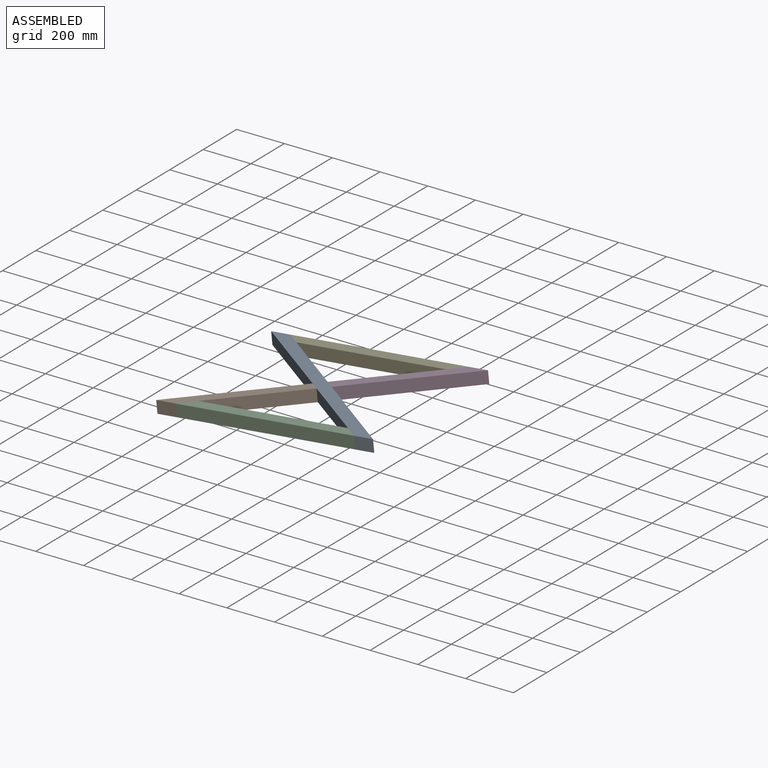
[diagram: assembled view]
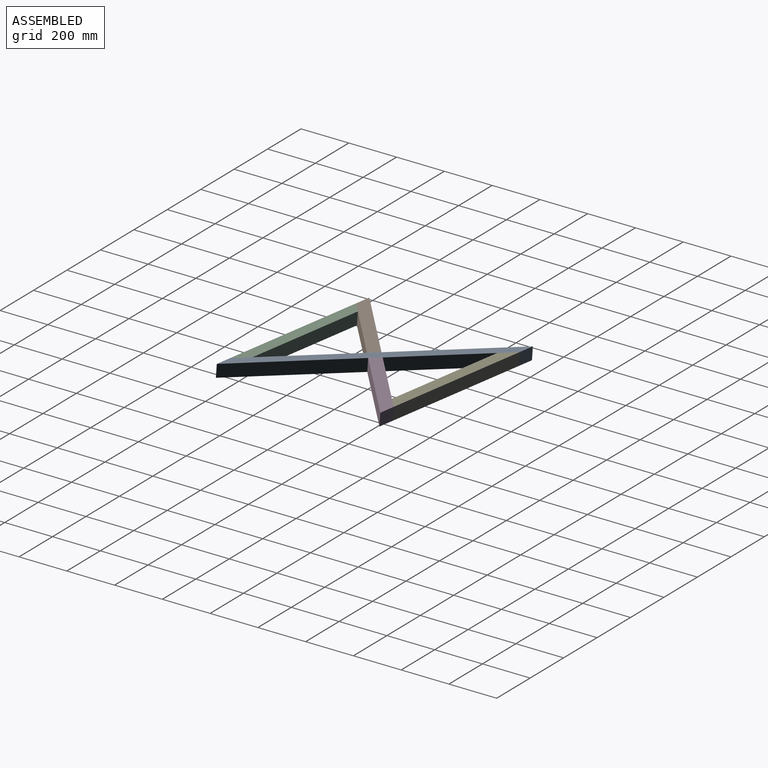
[diagram: assembled view, second angle]
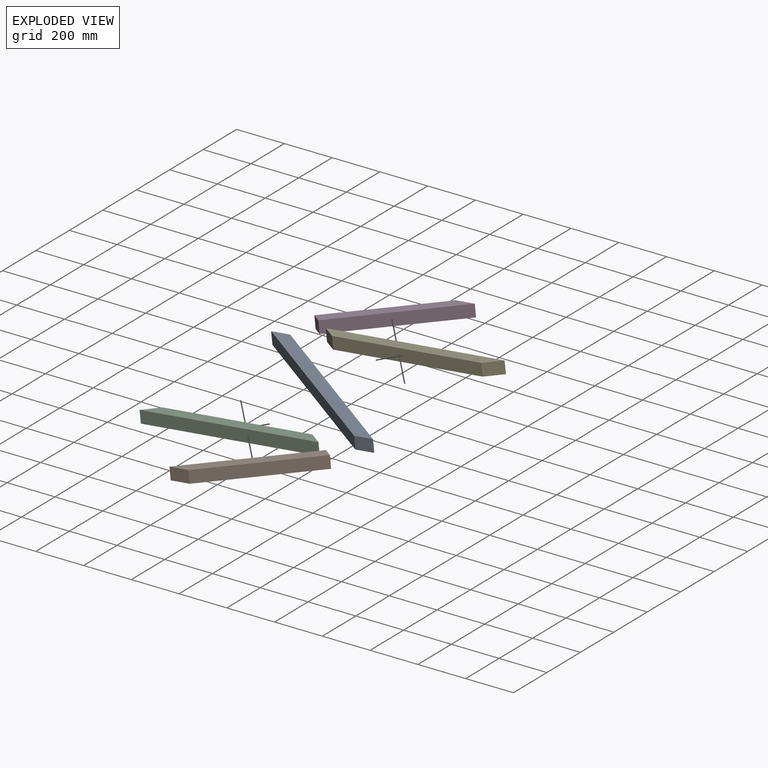
[diagram: exploded view]
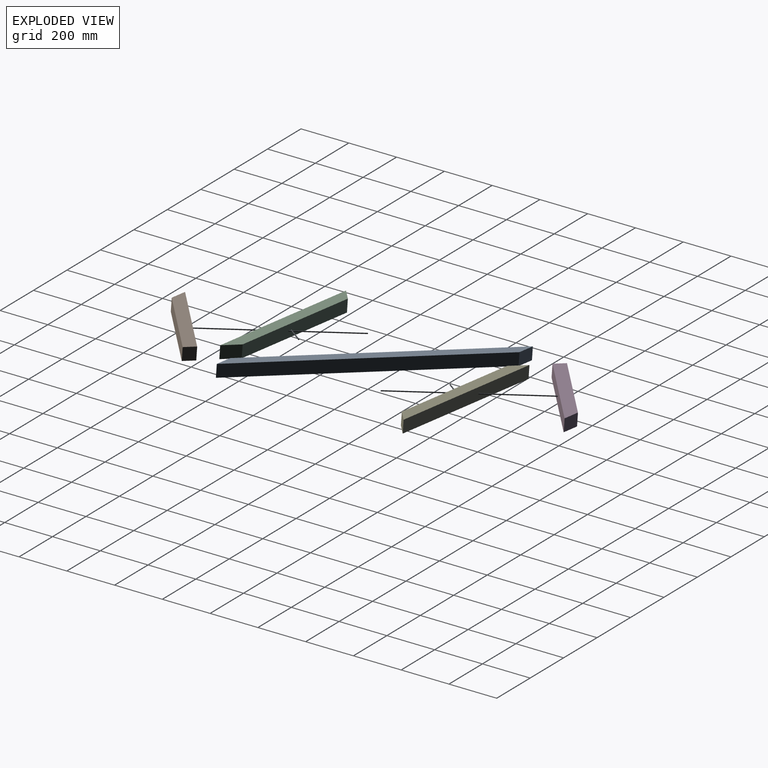
[diagram: exploded view, second angle]
ASSEMBLY  parts=5 mates=4
PART A: 6 faces, bbox 1141.9x50.8x50.8 mm
  f0: plane 1080.01x50.8mm, normal (0,1,0), area 54864.4mm2, adj f1,f3,f4,f5
  f1: plane 61.85x50.8mm, normal (-0.63,0.77,0), area 4065.7mm2, adj f0,f2,f4,f5
  f2: plane 1080.01x50.8mm, normal (0,-1,0), area 54864.4mm2, adj f1,f3,f4,f5
  f3: plane 61.85x50.8mm, normal (0.63,-0.77,0), area 4065.7mm2, adj f0,f2,f4,f5
  f4: plane 1141.85x50.8mm, normal (0,0,1), area 54864.4mm2, adj f0,f1,f2,f3
  f5: plane 1141.85x50.8mm, normal (0,0,-1), area 54864.4mm2, adj f0,f1,f2,f3
PART B: 6 faces, bbox 550x50.8x50.8 mm
  f0: plane 488.19x50.8mm, normal (0,1,0), area 24800.1mm2, adj f1,f3,f4,f5
  f1: plane 61.85x50.8mm, normal (-0.63,0.77,0), area 4065.7mm2, adj f0,f2,f4,f5
  f2: plane 540x50.8mm, normal (0,-1,0), area 27432.2mm2, adj f1,f3,f4,f5
  f3: plane 50.8x50.8mm, normal (0.98,-0.19,0), area 2630.5mm2, adj f0,f2,f4,f5
  f4: plane 550.04x50.8mm, normal (0,0,1), area 26116.1mm2, adj f0,f1,f2,f3
  f5: plane 550.04x50.8mm, normal (0,0,-1), area 26116.1mm2, adj f0,f1,f2,f3
PART C: 6 faces, bbox 754.4x50.8x50.8 mm
  f0: plane 754.38x50.8mm, normal (0,1,0), area 38322.5mm2, adj f1,f3,f4,f5
  f1: plane 61.85x50.8mm, normal (-0.63,-0.77,0), area 4065.7mm2, adj f0,f2,f4,f5
  f2: plane 630.69x50.8mm, normal (0,-1,0), area 32039.1mm2, adj f1,f3,f4,f5
  f3: plane 61.85x50.8mm, normal (0.63,-0.77,0), area 4065.7mm2, adj f0,f2,f4,f5
  f4: plane 754.38x50.8mm, normal (0,0,1), area 35180.8mm2, adj f0,f1,f2,f3
  f5: plane 754.38x50.8mm, normal (0,0,-1), area 35180.8mm2, adj f0,f1,f2,f3
PART D: same geometry as B
PART E: same geometry as C
PLACE A rot(axis=(0.05,-0.15,-0.99),40deg) t=(-540.21,-389.96,-409.58)mm
PLACE B rot(axis=(0.94,0.34,0.05),177.9deg) t=(-879.91,-571.74,-394.05)mm
PLACE C rot(axis=(-0.05,0,1),179.9deg) t=(-558.57,-680.37,-411.15)mm
PLACE D rot(axis=(-0.34,0.94,-0.02),174.4deg) t=(-322.7,-171.19,-335.86)mm
PLACE E rot(axis=(-0.01,-1,-0.02),6deg) t=(-633.4,-62.69,-419.8)mm
MATE fastened C.f1 <-> A.f2  axis (0.63,0.77,0.07) through (-224.25,-715.08,-350.34)mm
MATE fastened B.f0 <-> C.f3  axis (0.63,-0.77,0.07) through (-974.48,-713.42,-429.38)mm
MATE fastened D.f0 <-> E.f3  axis (-0.63,0.77,-0.07) through (-222.81,-29.57,-351.05)mm
MATE fastened A.f0 <-> E.f1  axis (0.63,0.77,0.07) through (-973.03,-27.91,-430.08)mm
